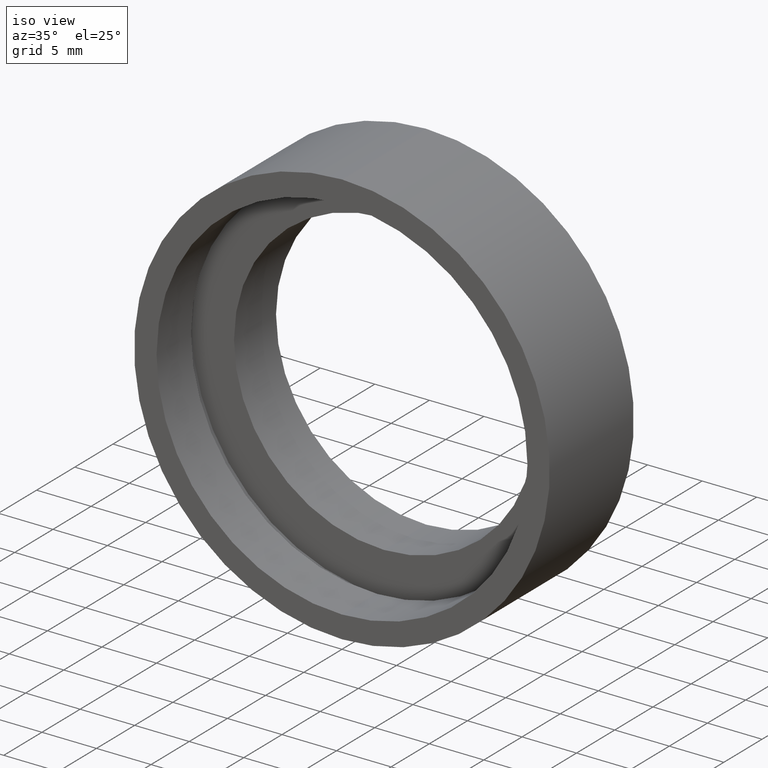
[diagram: clean part render]
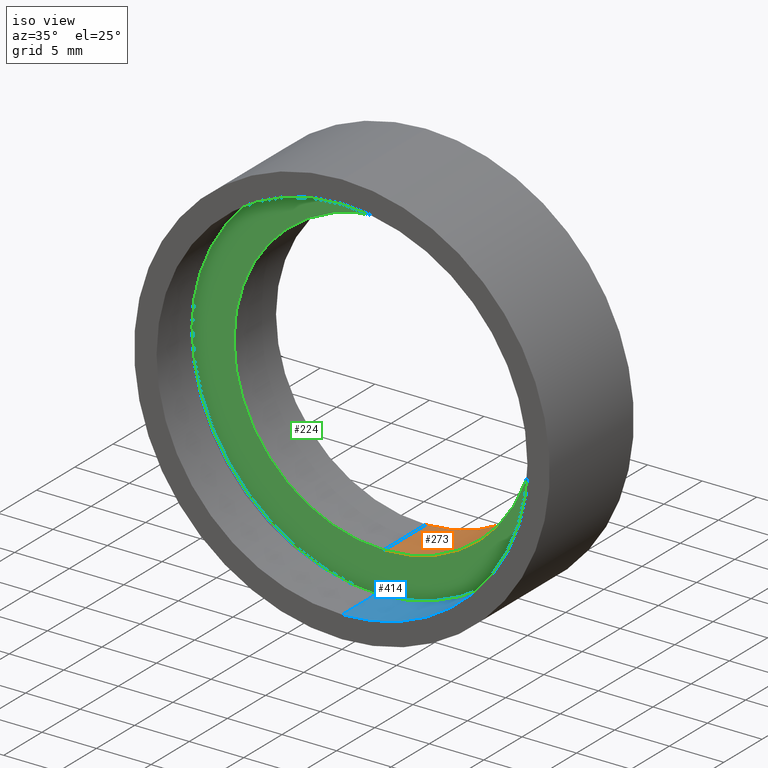
[diagram: same view with three faces highlighted in distinct colors, each labeled with its STEP entity id]
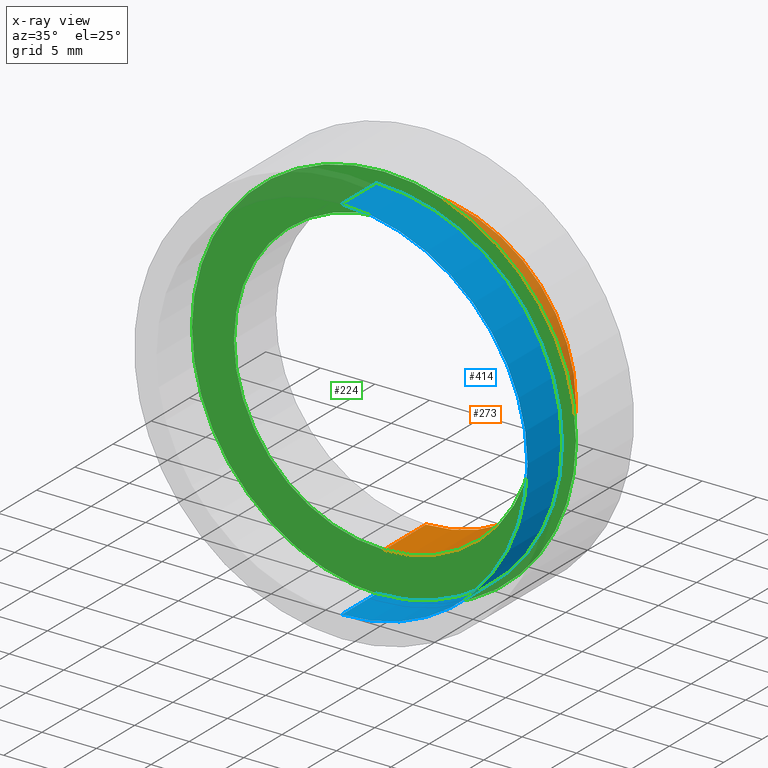
[diagram: x-ray of the same camera — body ghosted, the three highlighted faces saturated]
A machine part, iso view with three faces highlighted in distinct colors.
The next image is the same camera in x-ray (body ghosted, the three faces saturated) — at least one of them is partly hidden behind the body in this view.
Their STEP definitions:

[orange] entity #273 — the highlighted cylindrical surface (partial cylindrical patch) has radius 13.75 mm, axis along (-0, 1, -0).
#10 = ORIENTED_EDGE ( 'NONE', *, *, #197, .F. ) ;
#54 = ORIENTED_EDGE ( 'NONE', *, *, #350, .F. ) ;
#57 = CARTESIAN_POINT ( 'NONE',  ( 1.683889348827611800E-015, 10.99999999999999600, -13.75000000000000900 ) ) ;
#58 = VERTEX_POINT ( 'NONE', #57 ) ;
#63 = DIRECTION ( 'NONE',  ( 0.0000000000000000000, 0.0000000000000000000, 1.000000000000000000 ) ) ;
#68 = CARTESIAN_POINT ( 'NONE',  ( 0.0000000000000000000, 60.02082041425541100, 0.0000000000000000000 ) ) ;
#99 = CIRCLE ( 'NONE', #138, 13.75000000000000700 ) ;
#114 = VECTOR ( 'NONE', #339, 1000.000000000000000 ) ;
#117 = AXIS2_PLACEMENT_3D ( 'NONE', #147, #368, #400 ) ;
#124 = DIRECTION ( 'NONE',  ( -0.0000000000000000000, 1.000000000000000000, -0.0000000000000000000 ) ) ;
#127 = DIRECTION ( 'NONE',  ( -0.0000000000000000000, 1.000000000000000000, -0.0000000000000000000 ) ) ;
#131 = LINE ( 'NONE', #282, #327 ) ;
#137 = VERTEX_POINT ( 'NONE', #298 ) ;
#138 = AXIS2_PLACEMENT_3D ( 'NONE', #378, #127, #63 ) ;
#147 = CARTESIAN_POINT ( 'NONE',  ( 0.0000000000000000000, 5.499999999999998200, 0.0000000000000000000 ) ) ;
#176 = EDGE_CURVE ( 'NONE', #269, #58, #99, .T. ) ;
#177 = ORIENTED_EDGE ( 'NONE', *, *, #278, .T. ) ;
#193 = CARTESIAN_POINT ( 'NONE',  ( 1.683889348827611400E-015, 60.02082041425541100, -13.75000000000000500 ) ) ;
#197 = EDGE_CURVE ( 'NONE', #337, #137, #216, .T. ) ;
#216 = CIRCLE ( 'NONE', #117, 13.75000000000000500 ) ;
#241 = FACE_OUTER_BOUND ( 'NONE', #313, .T. ) ;
#267 = AXIS2_PLACEMENT_3D ( 'NONE', #68, #124, #385 ) ;
#269 = VERTEX_POINT ( 'NONE', #375 ) ;
#273 = ADVANCED_FACE ( 'NONE', ( #241 ), #398, .F. ) ;
#278 = EDGE_CURVE ( 'NONE', #337, #269, #131, .T. ) ;
#282 = CARTESIAN_POINT ( 'NONE',  ( 0.0000000000000000000, 60.02082041425541100, 13.75000000000000500 ) ) ;
#298 = CARTESIAN_POINT ( 'NONE',  ( 1.683889348827611400E-015, 5.499999999999998200, -13.75000000000000500 ) ) ;
#313 = EDGE_LOOP ( 'NONE', ( #54, #10, #177, #323 ) ) ;
#316 = LINE ( 'NONE', #193, #114 ) ;
#323 = ORIENTED_EDGE ( 'NONE', *, *, #176, .T. ) ;
#327 = VECTOR ( 'NONE', #377, 1000.000000000000000 ) ;
#337 = VERTEX_POINT ( 'NONE', #361 ) ;
#339 = DIRECTION ( 'NONE',  ( -0.0000000000000000000, 1.000000000000000000, -0.0000000000000000000 ) ) ;
#350 = EDGE_CURVE ( 'NONE', #137, #58, #316, .T. ) ;
#361 = CARTESIAN_POINT ( 'NONE',  ( 0.0000000000000000000, 5.499999999999998200, 13.75000000000000500 ) ) ;
#368 = DIRECTION ( 'NONE',  ( -0.0000000000000000000, 1.000000000000000000, -0.0000000000000000000 ) ) ;
#375 = CARTESIAN_POINT ( 'NONE',  ( 0.0000000000000000000, 10.99999999999999600, 13.75000000000000700 ) ) ;
#377 = DIRECTION ( 'NONE',  ( -0.0000000000000000000, 1.000000000000000000, -0.0000000000000000000 ) ) ;
#378 = CARTESIAN_POINT ( 'NONE',  ( 0.0000000000000000000, 10.99999999999999600, 0.0000000000000000000 ) ) ;
#385 = DIRECTION ( 'NONE',  ( 0.0000000000000000000, 0.0000000000000000000, 1.000000000000000000 ) ) ;
#398 = CYLINDRICAL_SURFACE ( 'NONE', #267, 13.75000000000000500 ) ;
#400 = DIRECTION ( 'NONE',  ( 0.0000000000000000000, 0.0000000000000000000, 1.000000000000000000 ) ) ;

[blue] entity #414 — the highlighted cylindrical surface (partial cylindrical patch) has radius 17 mm, axis along (-0, 1, -0).
#4 = DIRECTION ( 'NONE',  ( -0.0000000000000000000, 1.000000000000000000, -0.0000000000000000000 ) ) ;
#15 = CARTESIAN_POINT ( 'NONE',  ( 0.0000000000000000000, 4.499999999999997300, 17.00000000000000700 ) ) ;
#20 = CARTESIAN_POINT ( 'NONE',  ( 2.081899558550501500E-015, 0.0000000000000000000, -17.00000000000000700 ) ) ;
#34 = LINE ( 'NONE', #393, #129 ) ;
#42 = LINE ( 'NONE', #121, #51 ) ;
#47 = DIRECTION ( 'NONE',  ( -0.0000000000000000000, 1.000000000000000000, -0.0000000000000000000 ) ) ;
#51 = VECTOR ( 'NONE', #179, 1000.000000000000000 ) ;
#59 = CIRCLE ( 'NONE', #290, 17.00000000000000700 ) ;
#66 = ORIENTED_EDGE ( 'NONE', *, *, #406, .T. ) ;
#88 = CIRCLE ( 'NONE', #144, 17.00000000000000700 ) ;
#92 = CARTESIAN_POINT ( 'NONE',  ( 2.081899558550501500E-015, 4.499999999999997300, -17.00000000000000700 ) ) ;
#95 = DIRECTION ( 'NONE',  ( -0.0000000000000000000, 1.000000000000000000, -0.0000000000000000000 ) ) ;
#97 = VERTEX_POINT ( 'NONE', #20 ) ;
#118 = ORIENTED_EDGE ( 'NONE', *, *, #321, .T. ) ;
#121 = CARTESIAN_POINT ( 'NONE',  ( 0.0000000000000000000, 60.02082041425541100, 17.00000000000000700 ) ) ;
#129 = VECTOR ( 'NONE', #47, 1000.000000000000000 ) ;
#140 = DIRECTION ( 'NONE',  ( -0.0000000000000000000, 1.000000000000000000, -0.0000000000000000000 ) ) ;
#144 = AXIS2_PLACEMENT_3D ( 'NONE', #394, #95, #433 ) ;
#156 = VERTEX_POINT ( 'NONE', #178 ) ;
#174 = EDGE_CURVE ( 'NONE', #156, #97, #88, .T. ) ;
#178 = CARTESIAN_POINT ( 'NONE',  ( 0.0000000000000000000, 0.0000000000000000000, 17.00000000000000700 ) ) ;
#179 = DIRECTION ( 'NONE',  ( -0.0000000000000000000, 1.000000000000000000, -0.0000000000000000000 ) ) ;
#227 = CYLINDRICAL_SURFACE ( 'NONE', #402, 17.00000000000000700 ) ;
#237 = CARTESIAN_POINT ( 'NONE',  ( 0.0000000000000000000, 60.02082041425541100, 0.0000000000000000000 ) ) ;
#263 = VERTEX_POINT ( 'NONE', #15 ) ;
#274 = CARTESIAN_POINT ( 'NONE',  ( 0.0000000000000000000, 4.499999999999997300, 0.0000000000000000000 ) ) ;
#281 = ORIENTED_EDGE ( 'NONE', *, *, #174, .F. ) ;
#290 = AXIS2_PLACEMENT_3D ( 'NONE', #274, #4, #358 ) ;
#302 = EDGE_CURVE ( 'NONE', #97, #346, #34, .T. ) ;
#321 = EDGE_CURVE ( 'NONE', #263, #346, #59, .T. ) ;
#346 = VERTEX_POINT ( 'NONE', #92 ) ;
#347 = DIRECTION ( 'NONE',  ( 0.0000000000000000000, 0.0000000000000000000, 1.000000000000000000 ) ) ;
#351 = EDGE_LOOP ( 'NONE', ( #391, #281, #66, #118 ) ) ;
#358 = DIRECTION ( 'NONE',  ( 0.0000000000000000000, 0.0000000000000000000, 1.000000000000000000 ) ) ;
#373 = FACE_OUTER_BOUND ( 'NONE', #351, .T. ) ;
#391 = ORIENTED_EDGE ( 'NONE', *, *, #302, .F. ) ;
#393 = CARTESIAN_POINT ( 'NONE',  ( 2.081899558550501500E-015, 60.02082041425541100, -17.00000000000000700 ) ) ;
#394 = CARTESIAN_POINT ( 'NONE',  ( 0.0000000000000000000, 0.0000000000000000000, 0.0000000000000000000 ) ) ;
#402 = AXIS2_PLACEMENT_3D ( 'NONE', #237, #140, #347 ) ;
#406 = EDGE_CURVE ( 'NONE', #156, #263, #42, .T. ) ;
#414 = ADVANCED_FACE ( 'NONE', ( #373 ), #227, .F. ) ;
#433 = DIRECTION ( 'NONE',  ( 0.0000000000000000000, 0.0000000000000000000, 1.000000000000000000 ) ) ;

[green] entity #224 — the highlighted planar face has unit normal (-0, 1, 0).
#1 = ORIENTED_EDGE ( 'NONE', *, *, #344, .F. ) ;
#22 = VERTEX_POINT ( 'NONE', #266 ) ;
#23 = CARTESIAN_POINT ( 'NONE',  ( 0.0000000000000000000, 5.499999999999998200, 0.0000000000000000000 ) ) ;
#29 = EDGE_LOOP ( 'NONE', ( #214, #379 ) ) ;
#31 = DIRECTION ( 'NONE',  ( 0.0000000000000000000, 0.0000000000000000000, 1.000000000000000000 ) ) ;
#40 = DIRECTION ( 'NONE',  ( -0.0000000000000000000, 1.000000000000000000, -0.0000000000000000000 ) ) ;
#53 = ORIENTED_EDGE ( 'NONE', *, *, #360, .F. ) ;
#65 = CIRCLE ( 'NONE', #199, 17.60000000000001200 ) ;
#82 = AXIS2_PLACEMENT_3D ( 'NONE', #301, #336, #31 ) ;
#86 = FACE_OUTER_BOUND ( 'NONE', #260, .T. ) ;
#90 = DIRECTION ( 'NONE',  ( 0.0000000000000000000, 0.0000000000000000000, 1.000000000000000000 ) ) ;
#117 = AXIS2_PLACEMENT_3D ( 'NONE', #147, #368, #400 ) ;
#120 = AXIS2_PLACEMENT_3D ( 'NONE', #356, #310, #90 ) ;
#137 = VERTEX_POINT ( 'NONE', #298 ) ;
#147 = CARTESIAN_POINT ( 'NONE',  ( 0.0000000000000000000, 5.499999999999998200, 0.0000000000000000000 ) ) ;
#186 = EDGE_CURVE ( 'NONE', #137, #337, #318, .T. ) ;
#196 = CIRCLE ( 'NONE', #297, 17.60000000000001200 ) ;
#197 = EDGE_CURVE ( 'NONE', #337, #137, #216, .T. ) ;
#199 = AXIS2_PLACEMENT_3D ( 'NONE', #23, #432, #272 ) ;
#201 = VERTEX_POINT ( 'NONE', #233 ) ;
#214 = ORIENTED_EDGE ( 'NONE', *, *, #197, .T. ) ;
#216 = CIRCLE ( 'NONE', #117, 13.75000000000000500 ) ;
#224 = ADVANCED_FACE ( 'NONE', ( #86, #252 ), #370, .F. ) ;
#233 = CARTESIAN_POINT ( 'NONE',  ( 0.0000000000000000000, 5.499999999999998200, 17.60000000000001200 ) ) ;
#252 = FACE_BOUND ( 'NONE', #29, .T. ) ;
#260 = EDGE_LOOP ( 'NONE', ( #53, #1 ) ) ;
#265 = CARTESIAN_POINT ( 'NONE',  ( 0.0000000000000000000, 5.499999999999998200, 0.0000000000000000000 ) ) ;
#266 = CARTESIAN_POINT ( 'NONE',  ( 2.155378366499343200E-015, 5.499999999999998200, -17.60000000000001200 ) ) ;
#272 = DIRECTION ( 'NONE',  ( 0.0000000000000000000, 0.0000000000000000000, 1.000000000000000000 ) ) ;
#288 = DIRECTION ( 'NONE',  ( 0.0000000000000000000, 0.0000000000000000000, 1.000000000000000000 ) ) ;
#297 = AXIS2_PLACEMENT_3D ( 'NONE', #265, #40, #288 ) ;
#298 = CARTESIAN_POINT ( 'NONE',  ( 1.683889348827611400E-015, 5.499999999999998200, -13.75000000000000500 ) ) ;
#301 = CARTESIAN_POINT ( 'NONE',  ( 17.60000000000001200, 5.499999999999998200, 0.0000000000000000000 ) ) ;
#310 = DIRECTION ( 'NONE',  ( -0.0000000000000000000, 1.000000000000000000, -0.0000000000000000000 ) ) ;
#318 = CIRCLE ( 'NONE', #120, 13.75000000000000500 ) ;
#336 = DIRECTION ( 'NONE',  ( -0.0000000000000000000, 1.000000000000000000, 0.0000000000000000000 ) ) ;
#337 = VERTEX_POINT ( 'NONE', #361 ) ;
#344 = EDGE_CURVE ( 'NONE', #22, #201, #65, .T. ) ;
#356 = CARTESIAN_POINT ( 'NONE',  ( 0.0000000000000000000, 5.499999999999998200, 0.0000000000000000000 ) ) ;
#360 = EDGE_CURVE ( 'NONE', #201, #22, #196, .T. ) ;
#361 = CARTESIAN_POINT ( 'NONE',  ( 0.0000000000000000000, 5.499999999999998200, 13.75000000000000500 ) ) ;
#368 = DIRECTION ( 'NONE',  ( -0.0000000000000000000, 1.000000000000000000, -0.0000000000000000000 ) ) ;
#370 = PLANE ( 'NONE',  #82 ) ;
#379 = ORIENTED_EDGE ( 'NONE', *, *, #186, .T. ) ;
#400 = DIRECTION ( 'NONE',  ( 0.0000000000000000000, 0.0000000000000000000, 1.000000000000000000 ) ) ;
#432 = DIRECTION ( 'NONE',  ( -0.0000000000000000000, 1.000000000000000000, -0.0000000000000000000 ) ) ;